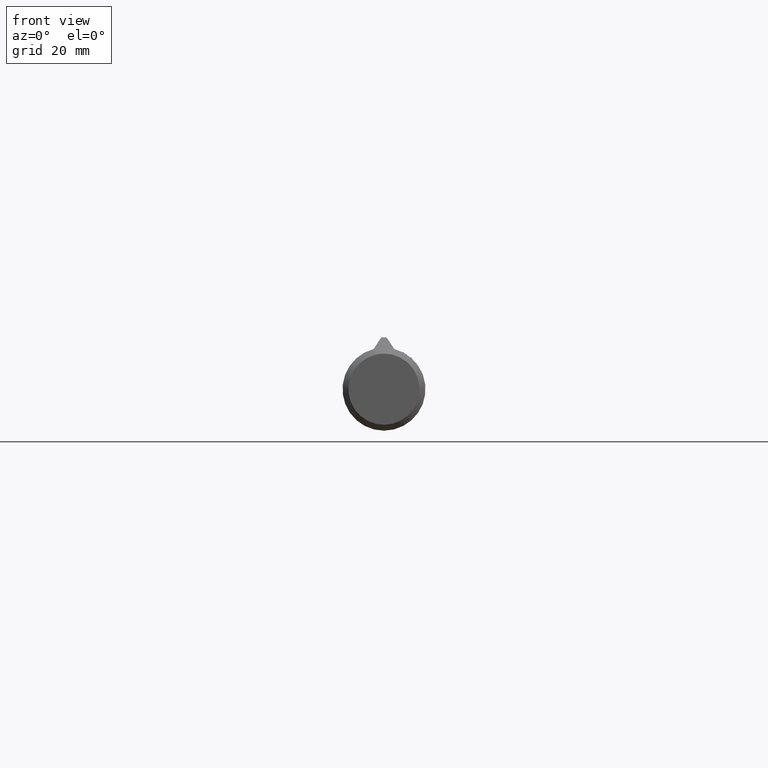
[diagram: clean part render]
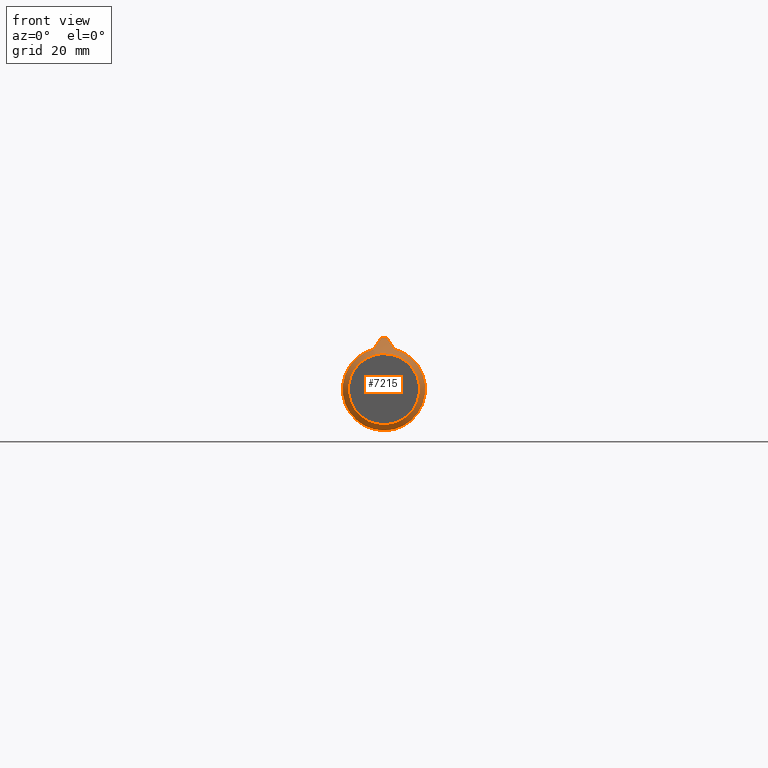
[diagram: same view with one face highlighted and labeled with its STEP entity id]
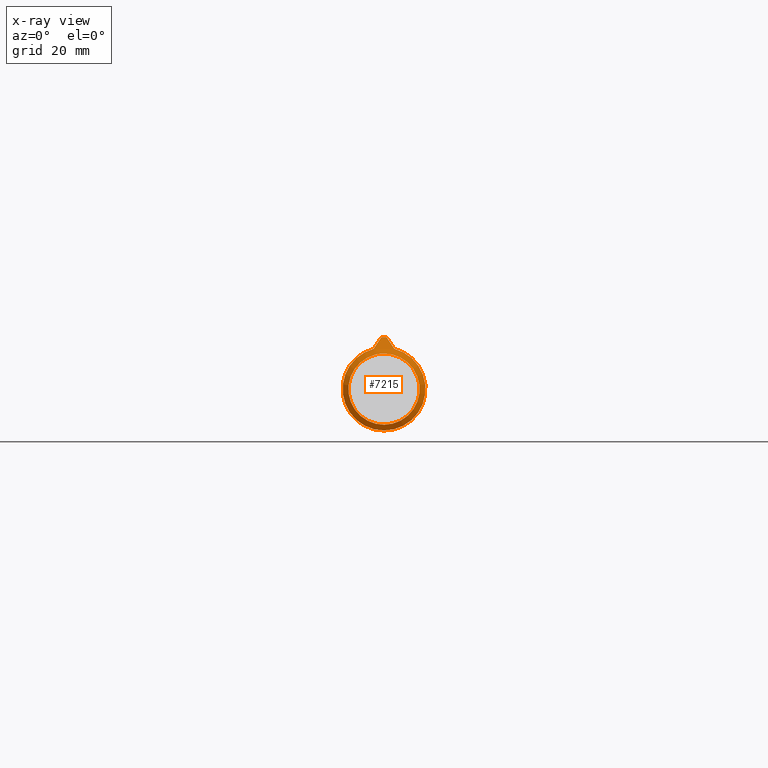
[diagram: x-ray of the same camera — body ghosted, the highlighted face saturated]
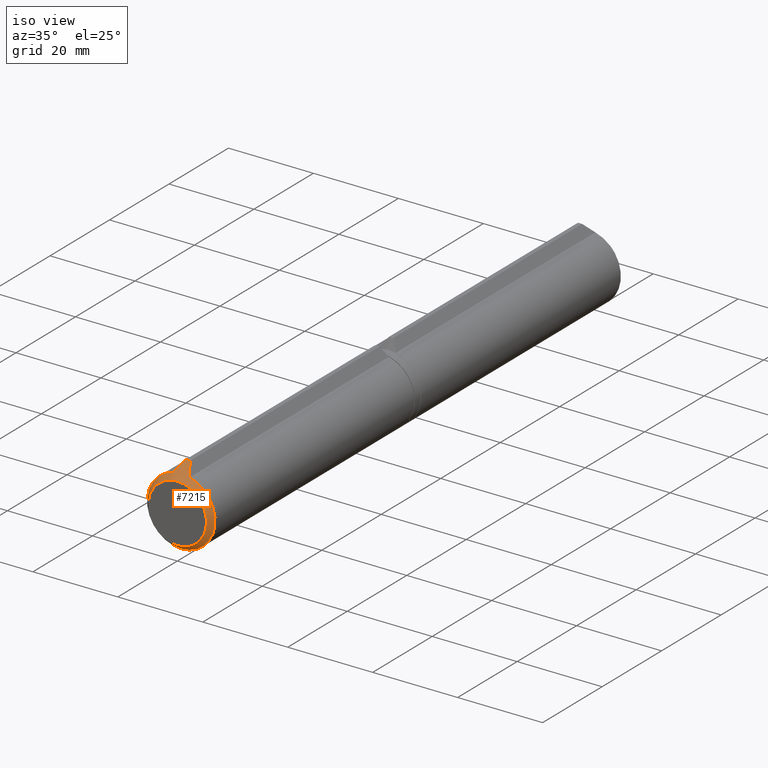
[diagram: same view with one face highlighted and labeled with its STEP entity id]
A machine part, front view. The second image highlights one B-rep face of the part: STEP entity #7215.
The next image is the same camera in x-ray: the body ghosted, the highlighted face saturated — about 0% of this face is hidden behind the body in this view.
A second angle (iso view) of the same face is appended — the face is thin or edge-on in the first view.
In plain terms, the highlighted conical surface has half-angle 41.505 deg.
Its self-contained STEP definition (entity closure, byte-faithful):
#359 = CARTESIAN_POINT ( 'NONE',  ( 0.9837837391402639575, 2.768140612047258031, -9.273023558873120464 ) ) ;
#442 = CARTESIAN_POINT ( 'NONE',  ( -6.414635304221269551E-47, -3.912045199536572827E-32, -6.861073782688430711 ) ) ;
#610 = DIRECTION ( 'NONE',  ( -2.886579864025390439E-15, -1.000000000000000000, -3.798257421772986577E-18 ) ) ;
#1276 = ORIENTED_EDGE ( 'NONE', *, *, #5640, .T. ) ;
#1372 = EDGE_CURVE ( 'NONE', #9855, #1405, #10198, .T. ) ;
#1405 = VERTEX_POINT ( 'NONE', #6624 ) ;
#1620 = CARTESIAN_POINT ( 'NONE',  ( 1.479702347256634409, 1.995575315282819284, -8.527812185176072646 ) ) ;
#1687 = AXIS2_PLACEMENT_3D ( 'NONE', #5450, #15692, #4083 ) ;
#1781 = B_SPLINE_CURVE_WITH_KNOTS ( 'NONE', 3,
 ( #3430, #13881, #4859, #8565 ),
 .UNSPECIFIED., .F., .F.,
 ( 4, 4 ),
 ( 0.008318635910509564885, 0.01187937153236948498 ),
 .UNSPECIFIED. ) ;
#1999 = CARTESIAN_POINT ( 'NONE',  ( -1.999999999999990008, 1.287078023558467788, -7.745966692414832266 ) ) ;
#2092 = DIRECTION ( 'NONE',  ( 2.886579864025390439E-15, 1.000000000000000000, 3.798257421772986577E-18 ) ) ;
#2102 = EDGE_CURVE ( 'NONE', #4470, #1405, #10869, .T. ) ;
#2214 = CARTESIAN_POINT ( 'NONE',  ( 3.262066892272726590E-14, 11.30080249269010650, 4.292335693985101859E-17 ) ) ;
#2234 = CARTESIAN_POINT ( 'NONE',  ( 0.5000000000000083267, 3.561355707479157306, -10.00000000000000000 ) ) ;
#2535 = CARTESIAN_POINT ( 'NONE',  ( 0.5000000000000083267, 3.561355707479157306, -10.00000000000000000 ) ) ;
#3202 = CARTESIAN_POINT ( 'NONE',  ( -0.4999999999999915623, 3.561355707479159083, -10.00000000000000000 ) ) ;
#3253 = VERTEX_POINT ( 'NONE', #442 ) ;
#3430 = CARTESIAN_POINT ( 'NONE',  ( -1.999999999999990008, 1.287078023558467788, -7.745966692414832266 ) ) ;
#3471 = CARTESIAN_POINT ( 'NONE',  ( 0.1682147557384712222, 3.542631900051917526, -10.00000000000000000 ) ) ;
#3685 = AXIS2_PLACEMENT_3D ( 'NONE', #2214, #2092, #10073 ) ;
#3984 = CARTESIAN_POINT ( 'NONE',  ( -0.4999999999999915623, 3.561355707479159083, -10.00000000000000000 ) ) ;
#4083 = DIRECTION ( 'NONE',  ( 0.000000000000000000, 0.000000000000000000, 1.000000000000000000 ) ) ;
#4135 = CARTESIAN_POINT ( 'NONE',  ( 2.000000000000011546, 1.287078023558480000, -7.745966692414834931 ) ) ;
#4470 = VERTEX_POINT ( 'NONE', #2535 ) ;
#4606 = B_SPLINE_CURVE_WITH_KNOTS ( 'NONE', 3,
 ( #3202, #15205, #3471, #2234 ),
 .UNSPECIFIED., .F., .F.,
 ( 4, 4 ),
 ( 0.002552897944805510889, 0.003543990119483518900 ),
 .UNSPECIFIED. ) ;
#4660 = EDGE_LOOP ( 'NONE', ( #1276, #10261, #14132, #12624 ) ) ;
#4859 = CARTESIAN_POINT ( 'NONE',  ( -0.9829000266461749291, 2.769589553038276808, -9.274351503803886843 ) ) ;
#5450 = CARTESIAN_POINT ( 'NONE',  ( 3.715253506233495977E-15, 1.287078023558474227, 4.888653655381895917E-18 ) ) ;
#5640 = EDGE_CURVE ( 'NONE', #9855, #13832, #1781, .T. ) ;
#6014 = CIRCLE ( 'NONE', #6937, 6.861073782688430711 ) ;
#6031 = CONICAL_SURFACE ( 'NONE', #3685, 16.86107378268840407, 0.7244056697429281932 ) ;
#6624 = CARTESIAN_POINT ( 'NONE',  ( 2.000000000000011546, 1.287078023558480000, -7.745966692414834931 ) ) ;
#6937 = AXIS2_PLACEMENT_3D ( 'NONE', #9875, #610, #12390 ) ;
#7215 = ADVANCED_FACE ( 'NONE', ( #10106, #11135 ), #6031, .T. ) ;
#7430 = ORIENTED_EDGE ( 'NONE', *, *, #7914, .F. ) ;
#7914 = EDGE_CURVE ( 'NONE', #3253, #3253, #6014, .T. ) ;
#8071 = CARTESIAN_POINT ( 'NONE',  ( 0.5000000000000083267, 3.561355707479157306, -10.00000000000000000 ) ) ;
#8565 = CARTESIAN_POINT ( 'NONE',  ( -0.4999999999999915623, 3.561355707479159083, -10.00000000000000000 ) ) ;
#9855 = VERTEX_POINT ( 'NONE', #1999 ) ;
#9875 = CARTESIAN_POINT ( 'NONE',  ( -7.522463039446039449E-32, -2.606012441642900639E-17, -9.898306097702885948E-35 ) ) ;
#10073 = DIRECTION ( 'NONE',  ( 0.000000000000000000, 0.000000000000000000, 1.000000000000000000 ) ) ;
#10106 = FACE_BOUND ( 'NONE', #14852, .T. ) ;
#10198 = CIRCLE ( 'NONE', #1687, 8.000000000000000000 ) ;
#10261 = ORIENTED_EDGE ( 'NONE', *, *, #15789, .T. ) ;
#10869 = B_SPLINE_CURVE_WITH_KNOTS ( 'NONE', 3,
 ( #8071, #359, #1620, #4135 ),
 .UNSPECIFIED., .F., .F.,
 ( 4, 4 ),
 ( 0.01086577870587800490, 0.01440535464140346548 ),
 .UNSPECIFIED. ) ;
#11135 = FACE_OUTER_BOUND ( 'NONE', #4660, .T. ) ;
#12390 = DIRECTION ( 'NONE',  ( 1.096397339207514634E-32, 3.798257421773070547E-18, -1.000000000000000000 ) ) ;
#12624 = ORIENTED_EDGE ( 'NONE', *, *, #1372, .F. ) ;
#13832 = VERTEX_POINT ( 'NONE', #3984 ) ;
#13881 = CARTESIAN_POINT ( 'NONE',  ( -1.476812844125179991, 1.999509996003216550, -8.532154209376612286 ) ) ;
#14132 = ORIENTED_EDGE ( 'NONE', *, *, #2102, .T. ) ;
#14852 = EDGE_LOOP ( 'NONE', ( #7430 ) ) ;
#15205 = CARTESIAN_POINT ( 'NONE',  ( -0.1682147557384560677, 3.542631900051919303, -10.00000000000000000 ) ) ;
#15692 = DIRECTION ( 'NONE',  ( 2.886579864025390439E-15, 1.000000000000000000, 3.798257421772986577E-18 ) ) ;
#15789 = EDGE_CURVE ( 'NONE', #13832, #4470, #4606, .T. ) ;